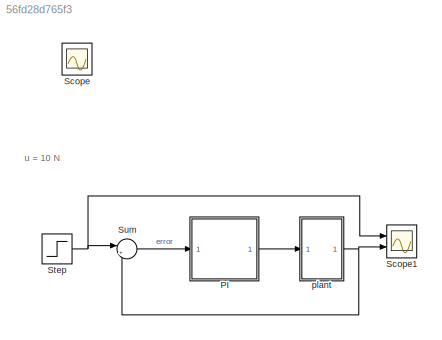
MODEL slx_56fd28d765f3
KIND model
CONFIG AbsTol = auto
CONFIG EnableMultiTasking = off
CONFIG FixedStep = auto
CONFIG MaxStep = auto
CONFIG MinStep = auto
CONFIG RelTol = 1e-3
CONFIG SampleTimeConstraint = Unconstrained
CONFIG SolverName = VariableStepAuto
CONFIG StartTime = 0.0
CONFIG StopTime = 10
BLOCK [ModelReference] PI
  ModelNameDialog = PI
  ModelReferenceVersion = 1.8
  Ports = [1, 1]
BLOCK [Scope] Scope
  Floating = off
  IOType = viewer
  NumInputPorts = 1
  Ports = []
  ScopeSpecificationString = Simulink.scopes.TimeScopeBlockCfg('CurrentConfiguration', extmgr.ConfigurationSet(extmgr.Configuration('Core','General UI',true),extmgr.Configuration('Core','Source UI',true),extmgr.Configuration('Sources','WiredSimulink',true),extmgr.Configuration('Visuals','Time Domain',true,'SerializedDisplays',{struct('MinYLimReal','-62.5','MaxYLimReal','562.5','YLabelReal','','MinYLimMag','0.00000','MaxYLimMa...<+1336ch>
BLOCK [Scope] Scope1
  Floating = off
  NumInputPorts = 2
  Ports = [2]
  ScopeSpecificationString = Simulink.scopes.TimeScopeBlockCfg('CurrentConfiguration', extmgr.ConfigurationSet(extmgr.Configuration('Core','General UI',true),extmgr.Configuration('Core','Source UI',true),extmgr.Configuration('Sources','WiredSimulink',true,'DataLoggingVariableName','ScopeData1'),extmgr.Configuration('Visuals','Time Domain',true,'SerializedDisplays',{struct('MinYLimReal','-1.25','MaxYLimReal','11.25','YLabelRea...<+1768ch>
BLOCK [Step] Step
  After = u
  SampleTime = 0
  Time = 0
BLOCK [Sum] Sum
  Inputs = |+-
  Ports = [2, 1]
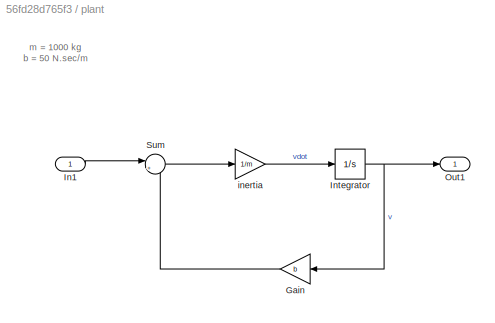
BLOCK [SubSystem] plant
  Ports = [1, 1]
  RequestExecContextInheritance = off
BLOCK [Gain] plant/Gain
  Gain = b
BLOCK [Inport] plant/In1
BLOCK [Integrator] plant/Integrator
  Ports = [1, 1]
BLOCK [Outport] plant/Out1
BLOCK [Sum] plant/Sum
  Inputs = |+-
  Ports = [2, 1]
BLOCK [Gain] plant/inertia
  Gain = 1/m
ANNOTATION (root): u = 10 N
ANNOTATION plant: m = 1000 kg b = 50 N.sec/m
LINE PI:1 -> plant:1
NET Step:1 -> Scope1:1, Sum:1
LINE Sum:1 -> PI:1
LINE plant/Gain:1 -> plant/Sum:2
LINE plant/In1:1 -> plant/Sum:1
NET plant/Integrator:1 -> plant/Gain:1, plant/Out1:1
LINE plant/Sum:1 -> plant/inertia:1
LINE plant/inertia:1 -> plant/Integrator:1
NET plant:1 -> Scope1:2, Sum:2
note: NET lines group one-source signal fan-out (src -> all destinations, sorted); 1:1 wires keep LINE
